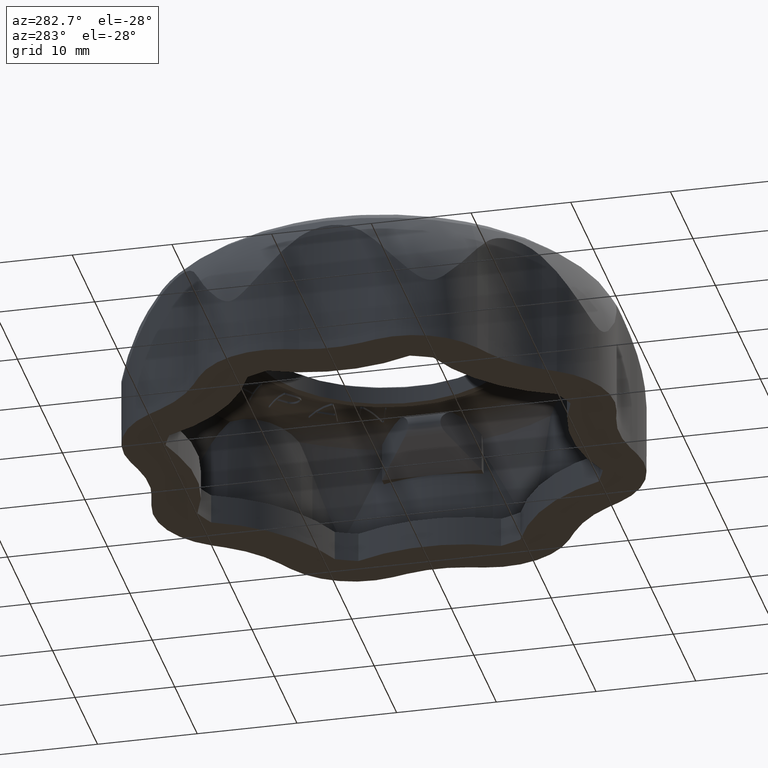
[diagram: clean part render]
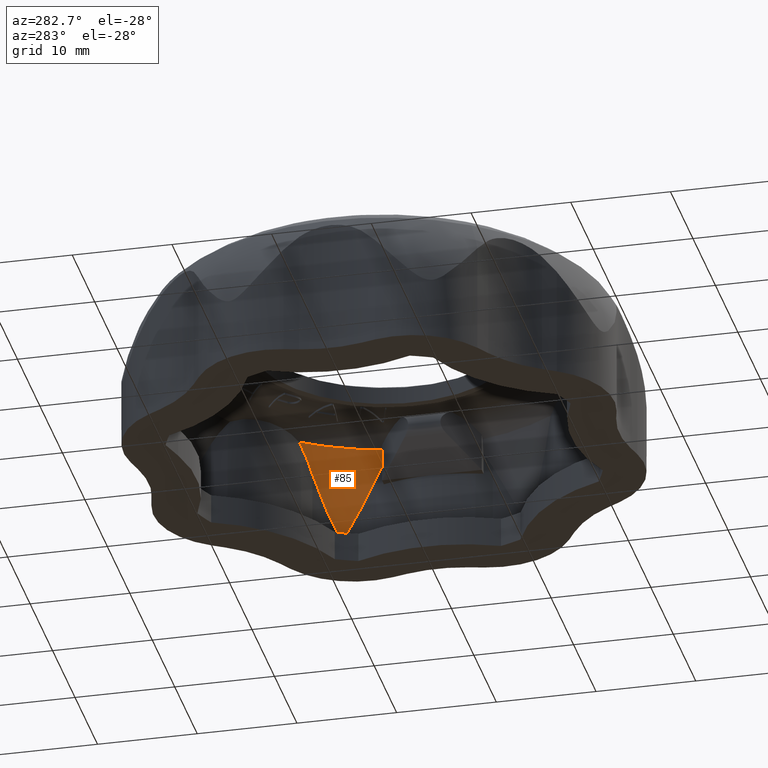
[diagram: same view with one face highlighted and labeled with its STEP entity id]
A machine part, auxiliary view. The second image highlights one B-rep face of the part: STEP entity #85.
In plain terms, the highlighted face is a freeform B-spline surface patch.
Its self-contained STEP definition (entity closure, byte-faithful):
#85 = ADVANCED_FACE( '', ( #2328 ), #2329, .F. );
#2328 = FACE_OUTER_BOUND( '', #6810, .T. );
#2329 = ( B_SPLINE_SURFACE( 3, 3, ( ( #6812, #6813, #6814, #6815 ), ( #6816, #6817, #6818, #6819 ), ( #6820, #6821, #6822, #6823 ), ( #6824, #6825, #6826, #6827 ) ), .UNSPECIFIED., .F., .F., .F. )B_SPLINE_SURFACE_WITH_KNOTS( ( 4, 4 ), ( 4, 4 ), ( 1.39795101742501, 1.78403232354196 ), ( 0.0107259049153320, 0.385938804095615 ), .UNSPECIFIED. )RATIONAL_B_SPLINE_SURFACE( ( ( 1.00000000000000, 0.987616961356048, 0.987616961356048, 1.00000000000000 ), ( 0.988302309986864, 0.976064124290389, 0.976064124290389, 0.988302309986864 ), ( 0.988302309986864, 0.976064124290389, 0.976064124290389, 0.988302309986864 ), ( 1.00000000000000, 0.987616961356048, 0.987616961356048, 1.00000000000000 ) ) )BOUNDED_SURFACE(  )REPRESENTATION_ITEM( '' )GEOMETRIC_REPRESENTATION_ITEM(  )SURFACE(  ) );
#6810 = EDGE_LOOP( '', ( #13223, #13224, #13225, #13226, #13227, #13228 ) );
#6812 = CARTESIAN_POINT( '', ( 21.6785559962961, 4.84441773717314, 12.7352901868200 ) );
#6813 = CARTESIAN_POINT( '', ( 21.0512060027968, 7.65178132578197, 12.7352901868200 ) );
#6814 = CARTESIAN_POINT( '', ( 19.8969330339727, 10.2866460749546, 12.7352901868200 ) );
#6815 = CARTESIAN_POINT( '', ( 18.2586173101597, 12.6511290886591, 12.7352901868200 ) );
#6816 = CARTESIAN_POINT( '', ( 22.8340232405749, 5.10262524941996, 9.82138124947555 ) );
#6817 = CARTESIAN_POINT( '', ( 22.1732354863543, 8.05962134445463, 9.82138124947556 ) );
#6818 = CARTESIAN_POINT( '', ( 20.9574397571278, 10.8349244102427, 9.82138124947556 ) );
#6819 = CARTESIAN_POINT( '', ( 19.2318017893897, 13.3254343914471, 9.82138124947555 ) );
#6820 = CARTESIAN_POINT( '', ( 23.4388306645101, 5.23777907666686, 6.73778231478068 ) );
#6821 = CARTESIAN_POINT( '', ( 22.7605405483453, 8.27309747049144, 6.73778231478068 ) );
#6822 = CARTESIAN_POINT( '', ( 21.5125418965204, 11.1219103107145, 6.73778231478068 ) );
#6823 = CARTESIAN_POINT( '', ( 19.7411967556348, 13.6783867188665, 6.73778231478068 ) );
#6824 = CARTESIAN_POINT( '', ( 23.4717537188130, 5.24513625618815, 3.59270633612408 ) );
#6825 = CARTESIAN_POINT( '', ( 22.7925108510948, 8.28471817124965, 3.59270633612408 ) );
#6826 = CARTESIAN_POINT( '', ( 21.5427592138939, 11.1375325600645, 3.59270633612408 ) );
#6827 = CARTESIAN_POINT( '', ( 19.7689259756669, 13.6975998901704, 3.59270633612408 ) );
#13223 = ORIENTED_EDGE( '', *, *, #31237, .T. );
#13224 = ORIENTED_EDGE( '', *, *, #32877, .T. );
#13225 = ORIENTED_EDGE( '', *, *, #32878, .T. );
#13226 = ORIENTED_EDGE( '', *, *, #32879, .T. );
#13227 = ORIENTED_EDGE( '', *, *, #32880, .T. );
#13228 = ORIENTED_EDGE( '', *, *, #32881, .F. );
#31237 = EDGE_CURVE( '', #37899, #37897, #37900, .T. );
#32877 = EDGE_CURVE( '', #37897, #41172, #41173, .T. );
#32878 = EDGE_CURVE( '', #41172, #41174, #41175, .T. );
#32879 = EDGE_CURVE( '', #41174, #41176, #41177, .T. );
#32880 = EDGE_CURVE( '', #41176, #41178, #41179, .T. );
#32881 = EDGE_CURVE( '', #37899, #41178, #41180, .T. );
#37897 = VERTEX_POINT( '', #49026 );
#37899 = VERTEX_POINT( '', #49041 );
#37900 = CIRCLE( '', #49042, 22.2132431962733 );
#41172 = VERTEX_POINT( '', #57682 );
#41173 = B_SPLINE_CURVE_WITH_KNOTS( '', 3, ( #57683, #57684, #57685, #57686 ), .UNSPECIFIED., .F., .F., ( 4, 4 ), ( 2.72903587027459E-007, 0.000377169302390173 ), .UNSPECIFIED. );
#41174 = VERTEX_POINT( '', #57687 );
#41175 = B_SPLINE_CURVE_WITH_KNOTS( '', 3, ( #57688, #57689, #57690, #57691 ), .UNSPECIFIED., .F., .F., ( 4, 4 ), ( 3.94874866751613E-007, 0.00299767024719866 ), .UNSPECIFIED. );
#41176 = VERTEX_POINT( '', #57692 );
#41177 = B_SPLINE_CURVE_WITH_KNOTS( '', 3, ( #57693, #57694, #57695, #57696, #57697, #57698, #57699, #57700, #57701, #57702, #57703, #57704, #57705, #57706, #57707, #57708, #57709, #57710, #57711, #57712, #57713, #57714, #57715, #57716, #57717, #57718, #57719, #57720, #57721, #57722, #57723, #57724 ), .UNSPECIFIED., .F., .F., ( 4, 2, 2, 2, 2, 2, 2, 2, 2, 2, 2, 2, 2, 2, 2, 4 ), ( 5.42593528952018E-007, 0.00360129002967859, 0.00540166374775341, 0.00630185060679082, 0.00675194403630953, 0.00697699075106888, 0.00708951410844856, 0.00714577578713840, 0.00720203746582824, 0.00731456082320791, 0.00742708418058758, 0.00765213089534692, 0.00810222432486561, 0.00900241118390298, 0.0108027849019777, 0.0144035323381272 ), .UNSPECIFIED. );
#41178 = VERTEX_POINT( '', #57725 );
#41179 = B_SPLINE_CURVE_WITH_KNOTS( '', 3, ( #57726, #57727, #57728, #57729 ), .UNSPECIFIED., .F., .F., ( 4, 4 ), ( 5.43796616594501E-007, 0.00173292549901677 ), .UNSPECIFIED. );
#41180 = B_SPLINE_CURVE_WITH_KNOTS( '', 3, ( #57730, #57731, #57732, #57733 ), .UNSPECIFIED., .F., .F., ( 4, 4 ), ( 2.16533371357009E-007, 0.00137531699740477 ), .UNSPECIFIED. );
#49026 = CARTESIAN_POINT( '', ( 18.2875281333330, 12.6093016487563, 12.7352901868200 ) );
#49041 = CARTESIAN_POINT( '', ( 21.6432016503159, 4.99999956205418, 12.7352901868200 ) );
#49042 = AXIS2_PLACEMENT_3D( '', #76344, #76345, #76346 );
#57682 = CARTESIAN_POINT( '', ( 18.5064738385106, 12.4879580387797, 12.4535289369293 ) );
#57683 = CARTESIAN_POINT( '', ( 18.2875281333331, 12.6093016487564, 12.7352901868200 ) );
#57684 = CARTESIAN_POINT( '', ( 18.3619643595558, 12.5672320866326, 12.6432421939312 ) );
#57685 = CARTESIAN_POINT( '', ( 18.4349658607537, 12.5268126565439, 12.5492387097947 ) );
#57686 = CARTESIAN_POINT( '', ( 18.5064738385105, 12.4879580387797, 12.4535289369293 ) );
#57687 = CARTESIAN_POINT( '', ( 19.9870721904978, 11.6834587291462, 9.97476532602732 ) );
#57688 = CARTESIAN_POINT( '', ( 18.5064738385111, 12.4879580387793, 12.4535289369297 ) );
#57689 = CARTESIAN_POINT( '', ( 19.0784527364808, 12.1771670481478, 11.6879646956612 ) );
#57690 = CARTESIAN_POINT( '', ( 19.5717108104079, 11.9091498783239, 10.8614976276397 ) );
#57691 = CARTESIAN_POINT( '', ( 19.9870721904979, 11.6834587291461, 9.97476532602741 ) );
#57692 = CARTESIAN_POINT( '', ( 22.3944474835809, 5.87154147971604, 9.97476416622805 ) );
#57693 = CARTESIAN_POINT( '', ( 19.9870721904979, 11.6834587291461, 9.97476532602741 ) );
#57694 = CARTESIAN_POINT( '', ( 20.4871596308354, 11.4117309736351, 8.90715557861680 ) );
#57695 = CARTESIAN_POINT( '', ( 20.9245887346779, 11.0645334843203, 7.84331348392737 ) );
#57696 = CARTESIAN_POINT( '', ( 21.4780791751917, 10.4578780546659, 6.24030306809206 ) );
#57697 = CARTESIAN_POINT( '', ( 21.6453210474160, 10.2414499018574, 5.70466909136742 ) );
#57698 = CARTESIAN_POINT( '', ( 21.8699320661928, 9.89507691735428, 4.89928439985049 ) );
#57699 = CARTESIAN_POINT( '', ( 21.9403350573062, 9.77621933841342, 4.63011146821518 ) );
#57700 = CARTESIAN_POINT( '', ( 22.0405870108230, 9.58910809407912, 4.22933184965152 ) );
#57701 = CARTESIAN_POINT( '', ( 22.0729809172510, 9.52560332637696, 4.09593742895974 ) );
#57702 = CARTESIAN_POINT( '', ( 22.1224775366074, 9.42267328846369, 3.90004343960444 ) );
#57703 = CARTESIAN_POINT( '', ( 22.1390007593113, 9.38739971277244, 3.83513647274587 ) );
#57704 = CARTESIAN_POINT( '', ( 22.1664287720543, 9.32662467357232, 3.74337635536712 ) );
#57705 = CARTESIAN_POINT( '', ( 22.1758864012197, 9.30535939659035, 3.71361043207806 ) );
#57706 = CARTESIAN_POINT( '', ( 22.1927547947948, 9.26646188711327, 3.67555625229252 ) );
#57707 = CARTESIAN_POINT( '', ( 22.1988787843875, 9.25219433570890, 3.66405188650649 ) );
#57708 = CARTESIAN_POINT( '', ( 22.2123346750729, 9.22035006843286, 3.64942675102477 ) );
#57709 = CARTESIAN_POINT( '', ( 22.2199282421078, 9.20211485813767, 3.64709803032781 ) );
#57710 = CARTESIAN_POINT( '', ( 22.2409603873229, 9.15075718428414, 3.66057373739446 ) );
#57711 = CARTESIAN_POINT( '', ( 22.2514511783465, 9.12417191880619, 3.68881578107156 ) );
#57712 = CARTESIAN_POINT( '', ( 22.2696481802842, 9.07733207553475, 3.74498736201731 ) );
#57713 = CARTESIAN_POINT( '', ( 22.2774252787936, 9.05682435038478, 3.77531364354912 ) );
#57714 = CARTESIAN_POINT( '', ( 22.2994892726336, 8.99765543129040, 3.86815264244861 ) );
#57715 = CARTESIAN_POINT( '', ( 22.3123662761485, 8.96167587250659, 3.93285907800050 ) );
#57716 = CARTESIAN_POINT( '', ( 22.3490090904588, 8.85587217628661, 4.12799815055734 ) );
#57717 = CARTESIAN_POINT( '', ( 22.3705535568385, 8.78872266609887, 4.26027084691863 ) );
#57718 = CARTESIAN_POINT( '', ( 22.4306779715446, 8.58751371433700, 4.65790516213162 ) );
#57719 = CARTESIAN_POINT( '', ( 22.4643099458978, 8.45468906288496, 4.92489734331275 ) );
#57720 = CARTESIAN_POINT( '', ( 22.5488006094310, 8.05370673043938, 5.72459072522793 ) );
#57721 = CARTESIAN_POINT( '', ( 22.5829079080077, 7.78396275527472, 6.25698416554973 ) );
#57722 = CARTESIAN_POINT( '', ( 22.6191445833684, 6.96758018759590, 7.85200462015245 ) );
#57723 = CARTESIAN_POINT( '', ( 22.5545705908062, 6.41272935833322, 8.91609013501388 ) );
#57724 = CARTESIAN_POINT( '', ( 22.3944474835809, 5.87154147971614, 9.97476416622811 ) );
#57725 = CARTESIAN_POINT( '', ( 22.1365814951482, 4.99999956205436, 11.4516699033177 ) );
#57726 = CARTESIAN_POINT( '', ( 22.3944474835810, 5.87154147971598, 9.97476416622803 ) );
#57727 = CARTESIAN_POINT( '', ( 22.3169297287079, 5.60954503285790, 10.4872826279312 ) );
#57728 = CARTESIAN_POINT( '', ( 22.2309426713329, 5.31892382556276, 10.9795085197988 ) );
#57729 = CARTESIAN_POINT( '', ( 22.1365814951482, 4.99999956205434, 11.4516699033177 ) );
#57730 = CARTESIAN_POINT( '', ( 21.6432016503159, 4.99999956205434, 12.7352901868200 ) );
#57731 = CARTESIAN_POINT( '', ( 21.8197537186566, 4.99999956205434, 12.3119211813902 ) );
#57732 = CARTESIAN_POINT( '', ( 21.9842060639327, 4.99999956205435, 11.8840449213704 ) );
#57733 = CARTESIAN_POINT( '', ( 22.1365814951482, 4.99999956205435, 11.4516699033177 ) );
#76344 = CARTESIAN_POINT( '', ( 0.000000000000000, 0.000000000000000, 12.7352901868200 ) );
#76345 = DIRECTION( '', ( 2.34318281388423E-017, -5.65694372839885E-017, 1.00000000000000 ) );
#76346 = DIRECTION( '', ( 0.382683432365090, -0.923879532511287, -6.12303176911189E-017 ) );